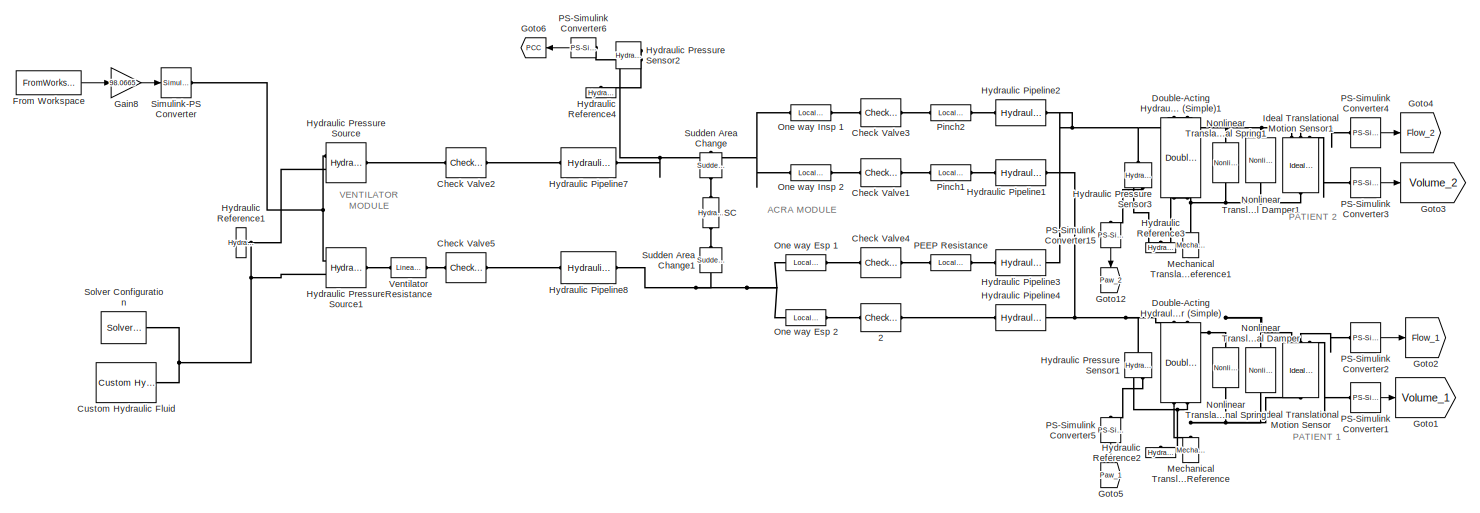
[diagram: root canvas - part 1/2, most of the canvas]
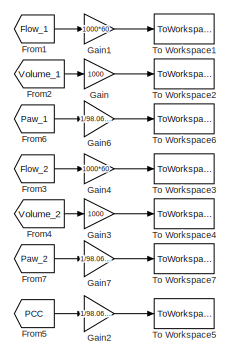
[diagram: root canvas - part 2/2, middle right region]
MODEL slx_180224f7515c
KIND model
CONFIG AbsTol = 1e-3
CONFIG EnableMultiTasking = on
CONFIG FixedStep = step
CONFIG MaxStep = auto
CONFIG MinStep = auto
CONFIG RelTol = 1e-3
CONFIG SampleTimeConstraint = Unconstrained
CONFIG Solver = VariableStepAuto
CONFIG SolverName = VariableStepAuto
CONFIG StartTime = 0.0
CONFIG StopTime = total_time
BLOCK [Reference]  2  REF=sh_lib/Valves/Directional Valves/Check Valve
  Ports = [0, 0, 0, 0, 0, 1, 1]
  SourceBlock = sh_lib/Valves/Directional Valves/Check Valve
  SourceProductBaseCode = SH
  SourceProductName = Simscape Fluids
  SourceType = Check Valve
BLOCK [Reference] Check Valve1  REF=sh_lib/Valves/Directional Valves/Check Valve
  Ports = [0, 0, 0, 0, 0, 1, 1]
  SourceBlock = sh_lib/Valves/Directional Valves/Check Valve
  SourceProductBaseCode = SH
  SourceProductName = Simscape Fluids
  SourceType = Check Valve
BLOCK [Reference] Check Valve2  REF=sh_lib/Valves/Directional Valves/Check Valve
  Ports = [0, 0, 0, 0, 0, 1, 1]
  SourceBlock = sh_lib/Valves/Directional Valves/Check Valve
  SourceProductBaseCode = SH
  SourceProductName = Simscape Fluids
  SourceType = Check Valve
BLOCK [Reference] Check Valve3  REF=sh_lib/Valves/Directional Valves/Check Valve
  Ports = [0, 0, 0, 0, 0, 1, 1]
  SourceBlock = sh_lib/Valves/Directional Valves/Check Valve
  SourceProductBaseCode = SH
  SourceProductName = Simscape Fluids
  SourceType = Check Valve
BLOCK [Reference] Check Valve4  REF=sh_lib/Valves/Directional Valves/Check Valve
  Ports = [0, 0, 0, 0, 0, 1, 1]
  SourceBlock = sh_lib/Valves/Directional Valves/Check Valve
  SourceProductBaseCode = SH
  SourceProductName = Simscape Fluids
  SourceType = Check Valve
BLOCK [Reference] Check Valve5  REF=sh_lib/Valves/Directional Valves/Check Valve
  Ports = [0, 0, 0, 0, 0, 1, 1]
  SourceBlock = sh_lib/Valves/Directional Valves/Check Valve
  SourceProductBaseCode = SH
  SourceProductName = Simscape Fluids
  SourceType = Check Valve
BLOCK [Reference] Custom Hydraulic Fluid  REF=fl_lib/Hydraulic/Hydraulic Utilities/Custom Hydraulic
Fluid
  Ports = [0, 0, 0, 0, 0, 0, 1]
  SourceBlock = fl_lib/Hydraulic/Hydraulic Utilities/Custom Hydraulic\nFluid
  SourceProductName = Foundation Library
  SourceType = Custom Hydraulic\nFluid
BLOCK [Reference] Double-Acting Hydraulic Cylinder (Simple)  REF=sh_lib/Hydraulic Cylinders/Double-Acting
Hydraulic Cylinder
(Simple)
  Ports = [0, 0, 0, 0, 0, 2, 2]
  SourceBlock = sh_lib/Hydraulic Cylinders/Double-Acting\nHydraulic Cylinder\n(Simple)
  SourceProductBaseCode = SH
  SourceProductName = Simscape Fluids
  SourceType = Double-Acting\nHydraulic Cylinder\n(Simple)
BLOCK [Reference] Double-Acting Hydraulic Cylinder (Simple)1  REF=sh_lib/Hydraulic Cylinders/Double-Acting
Hydraulic Cylinder
(Simple)
  Ports = [0, 0, 0, 0, 0, 2, 2]
  SourceBlock = sh_lib/Hydraulic Cylinders/Double-Acting\nHydraulic Cylinder\n(Simple)
  SourceProductBaseCode = SH
  SourceProductName = Simscape Fluids
  SourceType = Double-Acting\nHydraulic Cylinder\n(Simple)
BLOCK [FromWorkspace] From Workspace
  OutDataTypeStr = double
  SampleTime = 0
  VariableName = Input
  ZeroCross = on
BLOCK [From] From1
  GotoTag = Flow_1
BLOCK [From] From2
  GotoTag = Volume_1
BLOCK [From] From3
  GotoTag = Flow_2
BLOCK [From] From4
  GotoTag = Volume_2
BLOCK [From] From5
  GotoTag = PCC
BLOCK [From] From6
  GotoTag = Paw_1
BLOCK [From] From7
  GotoTag = Paw_2
BLOCK [Gain] Gain
  Gain = 1000
  OutDataTypeStr = Inherit: Inherit via internal rule
  ParamDataTypeStr = Inherit: Inherit via internal rule
  SaturateOnIntegerOverflow = off
BLOCK [Gain] Gain1
  Gain = 1000*60
  OutDataTypeStr = Inherit: Inherit via internal rule
  ParamDataTypeStr = Inherit: Inherit via internal rule
  SaturateOnIntegerOverflow = off
BLOCK [Gain] Gain2
  Gain = 1/98.0665
  OutDataTypeStr = Inherit: Inherit via internal rule
  ParamDataTypeStr = Inherit: Inherit via internal rule
  SaturateOnIntegerOverflow = off
BLOCK [Gain] Gain3
  Gain = 1000
  OutDataTypeStr = Inherit: Inherit via internal rule
  ParamDataTypeStr = Inherit: Inherit via internal rule
  SaturateOnIntegerOverflow = off
BLOCK [Gain] Gain4
  Gain = 1000*60
  OutDataTypeStr = Inherit: Inherit via internal rule
  ParamDataTypeStr = Inherit: Inherit via internal rule
  SaturateOnIntegerOverflow = off
BLOCK [Gain] Gain6
  Gain = 1/98.0665
  OutDataTypeStr = Inherit: Inherit via internal rule
  ParamDataTypeStr = Inherit: Inherit via internal rule
  SaturateOnIntegerOverflow = off
BLOCK [Gain] Gain7
  Gain = 1/98.0665
  OutDataTypeStr = Inherit: Inherit via internal rule
  ParamDataTypeStr = Inherit: Inherit via internal rule
  SaturateOnIntegerOverflow = off
BLOCK [Gain] Gain8
  Gain = 98.0665
  OutDataTypeStr = Inherit: Inherit via internal rule
  ParamDataTypeStr = Inherit: Inherit via internal rule
  SaturateOnIntegerOverflow = off
BLOCK [Goto] Goto1
  GotoTag = Volume_1
BLOCK [Goto] Goto12
  GotoTag = Paw_2
BLOCK [Goto] Goto2
  GotoTag = Flow_1
BLOCK [Goto] Goto3
  GotoTag = Volume_2
BLOCK [Goto] Goto4
  GotoTag = Flow_2
BLOCK [Goto] Goto5
  GotoTag = Paw_1
BLOCK [Goto] Goto6
  GotoTag = PCC
BLOCK [Reference] Hydraulic Pipeline1  REF=sh_lib/Pipelines/Hydraulic Pipeline
  Ports = [0, 0, 0, 0, 0, 1, 1]
  SourceBlock = sh_lib/Pipelines/Hydraulic Pipeline
  SourceProductBaseCode = SH
  SourceProductName = Simscape Fluids
  SourceType = Hydraulic Pipeline
BLOCK [Reference] Hydraulic Pipeline2  REF=sh_lib/Pipelines/Hydraulic Pipeline
  Ports = [0, 0, 0, 0, 0, 1, 1]
  SourceBlock = sh_lib/Pipelines/Hydraulic Pipeline
  SourceProductBaseCode = SH
  SourceProductName = Simscape Fluids
  SourceType = Hydraulic Pipeline
BLOCK [Reference] Hydraulic Pipeline3  REF=sh_lib/Pipelines/Hydraulic Pipeline
  Ports = [0, 0, 0, 0, 0, 1, 1]
  SourceBlock = sh_lib/Pipelines/Hydraulic Pipeline
  SourceProductBaseCode = SH
  SourceProductName = Simscape Fluids
  SourceType = Hydraulic Pipeline
BLOCK [Reference] Hydraulic Pipeline4  REF=sh_lib/Pipelines/Hydraulic Pipeline
  Ports = [0, 0, 0, 0, 0, 1, 1]
  SourceBlock = sh_lib/Pipelines/Hydraulic Pipeline
  SourceProductBaseCode = SH
  SourceProductName = Simscape Fluids
  SourceType = Hydraulic Pipeline
BLOCK [Reference] Hydraulic Pipeline7  REF=sh_lib/Pipelines/Hydraulic Pipeline
  Ports = [0, 0, 0, 0, 0, 1, 1]
  SourceBlock = sh_lib/Pipelines/Hydraulic Pipeline
  SourceProductBaseCode = SH
  SourceProductName = Simscape Fluids
  SourceType = Hydraulic Pipeline
BLOCK [Reference] Hydraulic Pipeline8  REF=sh_lib/Pipelines/Hydraulic Pipeline
  Ports = [0, 0, 0, 0, 0, 1, 1]
  SourceBlock = sh_lib/Pipelines/Hydraulic Pipeline
  SourceProductBaseCode = SH
  SourceProductName = Simscape Fluids
  SourceType = Hydraulic Pipeline
BLOCK [Reference] Hydraulic Pressure Sensor1  REF=fl_lib/Hydraulic/Hydraulic Sensors/Hydraulic Pressure
Sensor
  Ports = [0, 0, 0, 0, 0, 1, 2]
  SourceBlock = fl_lib/Hydraulic/Hydraulic Sensors/Hydraulic Pressure\nSensor
  SourceProductBaseCode = SS
  SourceProductName = Simscape
  SourceType = Hydraulic Pressure\nSensor
BLOCK [Reference] Hydraulic Pressure Sensor2  REF=fl_lib/Hydraulic/Hydraulic Sensors/Hydraulic Pressure
Sensor
  Ports = [0, 0, 0, 0, 0, 1, 2]
  SourceBlock = fl_lib/Hydraulic/Hydraulic Sensors/Hydraulic Pressure\nSensor
  SourceProductBaseCode = SS
  SourceProductName = Simscape
  SourceType = Hydraulic Pressure\nSensor
BLOCK [Reference] Hydraulic Pressure Sensor3  REF=fl_lib/Hydraulic/Hydraulic Sensors/Hydraulic Pressure
Sensor
  Ports = [0, 0, 0, 0, 0, 1, 2]
  SourceBlock = fl_lib/Hydraulic/Hydraulic Sensors/Hydraulic Pressure\nSensor
  SourceProductBaseCode = SS
  SourceProductName = Simscape
  SourceType = Hydraulic Pressure\nSensor
BLOCK [Reference] Hydraulic Pressure Source  REF=fl_lib/Hydraulic/Hydraulic Sources/Hydraulic Pressure
Source
  Ports = [0, 0, 0, 0, 0, 1, 2]
  SourceBlock = fl_lib/Hydraulic/Hydraulic Sources/Hydraulic Pressure\nSource
  SourceProductBaseCode = SS
  SourceProductName = Simscape
  SourceType = Hydraulic Pressure\nSource
BLOCK [Reference] Hydraulic Pressure Source1  REF=fl_lib/Hydraulic/Hydraulic Sources/Hydraulic Pressure
Source
  Ports = [0, 0, 0, 0, 0, 1, 2]
  SourceBlock = fl_lib/Hydraulic/Hydraulic Sources/Hydraulic Pressure\nSource
  SourceProductBaseCode = SS
  SourceProductName = Simscape
  SourceType = Hydraulic Pressure\nSource
BLOCK [Reference] Hydraulic Reference1  REF=fl_lib/Hydraulic/Hydraulic Elements/Hydraulic Reference
  Ports = [0, 0, 0, 0, 0, 1]
  SourceBlock = fl_lib/Hydraulic/Hydraulic Elements/Hydraulic Reference
  SourceProductName = Foundation Library
  SourceType = Hydraulic Reference
BLOCK [Reference] Hydraulic Reference2  REF=fl_lib/Hydraulic/Hydraulic Elements/Hydraulic Reference
  Ports = [0, 0, 0, 0, 0, 1]
  SourceBlock = fl_lib/Hydraulic/Hydraulic Elements/Hydraulic Reference
  SourceProductName = Foundation Library
  SourceType = Hydraulic Reference
BLOCK [Reference] Hydraulic Reference3  REF=fl_lib/Hydraulic/Hydraulic Elements/Hydraulic Reference
  Ports = [0, 0, 0, 0, 0, 1]
  SourceBlock = fl_lib/Hydraulic/Hydraulic Elements/Hydraulic Reference
  SourceProductName = Foundation Library
  SourceType = Hydraulic Reference
BLOCK [Reference] Hydraulic Reference4  REF=fl_lib/Hydraulic/Hydraulic Elements/Hydraulic Reference
  Ports = [0, 0, 0, 0, 0, 1]
  SourceBlock = fl_lib/Hydraulic/Hydraulic Elements/Hydraulic Reference
  SourceProductName = Foundation Library
  SourceType = Hydraulic Reference
BLOCK [Reference] Ideal Translational Motion Sensor  REF=fl_lib/Mechanical/Mechanical Sensors/Ideal Translational
Motion Sensor
  Ports = [0, 0, 0, 0, 0, 1, 3]
  SourceBlock = fl_lib/Mechanical/Mechanical Sensors/Ideal Translational\nMotion Sensor
  SourceProductBaseCode = SS
  SourceProductName = Simscape
  SourceType = Ideal Translational\nMotion Sensor
BLOCK [Reference] Ideal Translational Motion Sensor1  REF=fl_lib/Mechanical/Mechanical Sensors/Ideal Translational
Motion Sensor
  Ports = [0, 0, 0, 0, 0, 1, 3]
  SourceBlock = fl_lib/Mechanical/Mechanical Sensors/Ideal Translational\nMotion Sensor
  SourceProductBaseCode = SS
  SourceProductName = Simscape
  SourceType = Ideal Translational\nMotion Sensor
BLOCK [Reference] Mechanical Translational Reference  REF=fl_lib/Mechanical/Translational
Elements/Mechanical
Translational
Reference
  Ports = [0, 0, 0, 0, 0, 1]
  SourceBlock = fl_lib/Mechanical/Translational\nElements/Mechanical\nTranslational\nReference
  SourceProductBaseCode = SS
  SourceProductName = Simscape
  SourceType = Mechanical\nTranslational\nReference
BLOCK [Reference] Mechanical Translational Reference1  REF=fl_lib/Mechanical/Translational
Elements/Mechanical
Translational
Reference
  Ports = [0, 0, 0, 0, 0, 1]
  SourceBlock = fl_lib/Mechanical/Translational\nElements/Mechanical\nTranslational\nReference
  SourceProductBaseCode = SS
  SourceProductName = Simscape
  SourceType = Mechanical\nTranslational\nReference
BLOCK [Reference] Nonlinear Translational Damper  REF=sdl_lib/Couplings & Drives/Springs & Dampers/Nonlinear
Translational Damper
  Ports = [0, 0, 0, 0, 0, 1, 1]
  SourceBlock = sdl_lib/Couplings & Drives/Springs & Dampers/Nonlinear\nTranslational Damper
  SourceProductBaseCode = LD
  SourceProductName = Simscape Driveline
  SourceType = Nonlinear\nTranslational Damper
BLOCK [Reference] Nonlinear Translational Damper1  REF=sdl_lib/Couplings & Drives/Springs & Dampers/Nonlinear
Translational Damper
  Ports = [0, 0, 0, 0, 0, 1, 1]
  SourceBlock = sdl_lib/Couplings & Drives/Springs & Dampers/Nonlinear\nTranslational Damper
  SourceProductBaseCode = LD
  SourceProductName = Simscape Driveline
  SourceType = Nonlinear\nTranslational Damper
BLOCK [Reference] Nonlinear Translational Spring  REF=sdl_lib/Couplings & Drives/Springs & Dampers/Nonlinear
Translational Spring
  Ports = [0, 0, 0, 0, 0, 1, 1]
  SourceBlock = sdl_lib/Couplings & Drives/Springs & Dampers/Nonlinear\nTranslational Spring
  SourceProductBaseCode = LD
  SourceProductName = Simscape Driveline
  SourceType = Nonlinear\nTranslational Spring
BLOCK [Reference] Nonlinear Translational Spring1  REF=sdl_lib/Couplings & Drives/Springs & Dampers/Nonlinear
Translational Spring
  Ports = [0, 0, 0, 0, 0, 1, 1]
  SourceBlock = sdl_lib/Couplings & Drives/Springs & Dampers/Nonlinear\nTranslational Spring
  SourceProductBaseCode = LD
  SourceProductName = Simscape Driveline
  SourceType = Nonlinear\nTranslational Spring
BLOCK [Reference] One way Esp 1  REF=sh_lib/Local Hydraulic
Resistances/Local Resistance
  Ports = [0, 0, 0, 0, 0, 1, 1]
  SourceBlock = sh_lib/Local Hydraulic\nResistances/Local Resistance
  SourceProductBaseCode = SH
  SourceProductName = Simscape Fluids
  SourceType = Local Resistance
BLOCK [Reference] One way Esp 2  REF=sh_lib/Local Hydraulic
Resistances/Local Resistance
  Ports = [0, 0, 0, 0, 0, 1, 1]
  SourceBlock = sh_lib/Local Hydraulic\nResistances/Local Resistance
  SourceProductBaseCode = SH
  SourceProductName = Simscape Fluids
  SourceType = Local Resistance
BLOCK [Reference] One way Insp 1  REF=sh_lib/Local Hydraulic
Resistances/Local Resistance
  Ports = [0, 0, 0, 0, 0, 1, 1]
  SourceBlock = sh_lib/Local Hydraulic\nResistances/Local Resistance
  SourceProductBaseCode = SH
  SourceProductName = Simscape Fluids
  SourceType = Local Resistance
BLOCK [Reference] One way Insp 2  REF=sh_lib/Local Hydraulic
Resistances/Local Resistance
  Ports = [0, 0, 0, 0, 0, 1, 1]
  SourceBlock = sh_lib/Local Hydraulic\nResistances/Local Resistance
  SourceProductBaseCode = SH
  SourceProductName = Simscape Fluids
  SourceType = Local Resistance
BLOCK [Reference] PEEP Resistance  REF=sh_lib/Local Hydraulic
Resistances/Local Resistance
  Ports = [0, 0, 0, 0, 0, 1, 1]
  SourceBlock = sh_lib/Local Hydraulic\nResistances/Local Resistance
  SourceProductBaseCode = SH
  SourceProductName = Simscape Fluids
  SourceType = Local Resistance
BLOCK [Reference] PS-Simulink Converter1  REF=nesl_utility/PS-Simulink
Converter
  Ports = [0, 1, 0, 0, 0, 1]
  SourceBlock = nesl_utility/PS-Simulink\nConverter
  SourceProductBaseCode = SS
  SourceProductName = Simscape
  SourceType = PS-Simulink\nConverter
BLOCK [Reference] PS-Simulink Converter15  REF=nesl_utility/PS-Simulink
Converter
  Ports = [0, 1, 0, 0, 0, 1]
  SourceBlock = nesl_utility/PS-Simulink\nConverter
  SourceProductBaseCode = SS
  SourceProductName = Simscape
  SourceType = PS-Simulink\nConverter
BLOCK [Reference] PS-Simulink Converter2  REF=nesl_utility/PS-Simulink
Converter
  Ports = [0, 1, 0, 0, 0, 1]
  SourceBlock = nesl_utility/PS-Simulink\nConverter
  SourceProductBaseCode = SS
  SourceProductName = Simscape
  SourceType = PS-Simulink\nConverter
BLOCK [Reference] PS-Simulink Converter3  REF=nesl_utility/PS-Simulink
Converter
  Ports = [0, 1, 0, 0, 0, 1]
  SourceBlock = nesl_utility/PS-Simulink\nConverter
  SourceProductBaseCode = SS
  SourceProductName = Simscape
  SourceType = PS-Simulink\nConverter
BLOCK [Reference] PS-Simulink Converter4  REF=nesl_utility/PS-Simulink
Converter
  Ports = [0, 1, 0, 0, 0, 1]
  SourceBlock = nesl_utility/PS-Simulink\nConverter
  SourceProductBaseCode = SS
  SourceProductName = Simscape
  SourceType = PS-Simulink\nConverter
BLOCK [Reference] PS-Simulink Converter5  REF=nesl_utility/PS-Simulink
Converter
  Ports = [0, 1, 0, 0, 0, 1]
  SourceBlock = nesl_utility/PS-Simulink\nConverter
  SourceProductBaseCode = SS
  SourceProductName = Simscape
  SourceType = PS-Simulink\nConverter
BLOCK [Reference] PS-Simulink Converter6  REF=nesl_utility/PS-Simulink
Converter
  Ports = [0, 1, 0, 0, 0, 1]
  SourceBlock = nesl_utility/PS-Simulink\nConverter
  SourceProductBaseCode = SS
  SourceProductName = Simscape
  SourceType = PS-Simulink\nConverter
BLOCK [Reference] Pinch1  REF=sh_lib/Local Hydraulic
Resistances/Local Resistance
  Ports = [0, 0, 0, 0, 0, 1, 1]
  SourceBlock = sh_lib/Local Hydraulic\nResistances/Local Resistance
  SourceProductBaseCode = SH
  SourceProductName = Simscape Fluids
  SourceType = Local Resistance
BLOCK [Reference] Pinch2  REF=sh_lib/Local Hydraulic
Resistances/Local Resistance
  Ports = [0, 0, 0, 0, 0, 1, 1]
  SourceBlock = sh_lib/Local Hydraulic\nResistances/Local Resistance
  SourceProductBaseCode = SH
  SourceProductName = Simscape Fluids
  SourceType = Local Resistance
BLOCK [Reference] SC  REF=fl_lib/Hydraulic/Hydraulic Elements/Hydraulic Resistive
Tube
  Ports = [0, 0, 0, 0, 0, 1, 1]
  SourceBlock = fl_lib/Hydraulic/Hydraulic Elements/Hydraulic Resistive\nTube
  SourceProductBaseCode = SS
  SourceProductName = Simscape
  SourceType = Hydraulic Resistive\nTube
BLOCK [Reference] Simulink-PS Converter  REF=nesl_utility/Simulink-PS
Converter
  Ports = [1, 0, 0, 0, 0, 0, 1]
  SourceBlock = nesl_utility/Simulink-PS\nConverter
  SourceProductBaseCode = SS
  SourceProductName = Simscape
  SourceType = Simulink-PS\nConverter
BLOCK [Reference] Solver Configuration  REF=nesl_utility/Solver
Configuration
  Ports = [0, 0, 0, 0, 0, 0, 1]
  SourceBlock = nesl_utility/Solver\nConfiguration
  SourceProductBaseCode = SS
  SourceProductName = Simscape
  SourceType = Solver\nConfiguration
BLOCK [Reference] Sudden Area Change  REF=sh_lib/Local Hydraulic
Resistances/Sudden Area Change
  Ports = [0, 0, 0, 0, 0, 1, 1]
  SourceBlock = sh_lib/Local Hydraulic\nResistances/Sudden Area Change
  SourceProductBaseCode = SH
  SourceProductName = Simscape Fluids
  SourceType = Sudden Area Change
BLOCK [Reference] Sudden Area Change1  REF=sh_lib/Local Hydraulic
Resistances/Sudden Area Change
  Ports = [0, 0, 0, 0, 0, 1, 1]
  SourceBlock = sh_lib/Local Hydraulic\nResistances/Sudden Area Change
  SourceProductBaseCode = SH
  SourceProductName = Simscape Fluids
  SourceType = Sudden Area Change
BLOCK [ToWorkspace] To Workspace1
  FixptAsFi = on
  MaxDataPoints = inf
  Ports = [1]
  SampleTime = 0.01
  Save2DSignal = 2-D array (concatenate along first dimension)
  VariableName = flow_1_num
BLOCK [ToWorkspace] To Workspace2
  FixptAsFi = on
  MaxDataPoints = inf
  Ports = [1]
  SampleTime = 0.01
  Save2DSignal = 2-D array (concatenate along first dimension)
  VariableName = vol_1_num
BLOCK [ToWorkspace] To Workspace3
  FixptAsFi = on
  MaxDataPoints = inf
  Ports = [1]
  SampleTime = 0.01
  Save2DSignal = 2-D array (concatenate along first dimension)
  VariableName = flow_2_num
BLOCK [ToWorkspace] To Workspace4
  FixptAsFi = on
  MaxDataPoints = inf
  Ports = [1]
  SampleTime = 0.01
  Save2DSignal = 2-D array (concatenate along first dimension)
  VariableName = vol_2_num
BLOCK [ToWorkspace] To Workspace5
  FixptAsFi = on
  MaxDataPoints = inf
  Ports = [1]
  SampleTime = 0.01
  Save2DSignal = 2-D array (concatenate along first dimension)
  VariableName = Pcc_num
BLOCK [ToWorkspace] To Workspace6
  FixptAsFi = on
  MaxDataPoints = inf
  Ports = [1]
  SampleTime = 0.01
  Save2DSignal = 2-D array (concatenate along first dimension)
  VariableName = Paw_1_num
BLOCK [ToWorkspace] To Workspace7
  FixptAsFi = on
  MaxDataPoints = inf
  Ports = [1]
  SampleTime = 0.01
  Save2DSignal = 2-D array (concatenate along first dimension)
  VariableName = Paw_2_num
BLOCK [Reference] Ventilator Resistance  REF=fl_lib/Hydraulic/Hydraulic Elements/Linear Hydraulic
Resistance
  Ports = [0, 0, 0, 0, 0, 1, 1]
  SourceBlock = fl_lib/Hydraulic/Hydraulic Elements/Linear Hydraulic\nResistance
  SourceProductBaseCode = SS
  SourceProductName = Simscape
  SourceType = Linear Hydraulic\nResistance
ANNOTATION (root): ACRA MODULE
ANNOTATION (root): PATIENT 1
ANNOTATION (root): PATIENT 2
ANNOTATION (root): VENTILATOR MODULE
LINE From Workspace:1 -> Gain8:1
LINE From1:1 -> Gain1:1
LINE From2:1 -> Gain:1
LINE From3:1 -> Gain4:1
LINE From4:1 -> Gain3:1
LINE From5:1 -> Gain2:1
LINE From6:1 -> Gain6:1
LINE From7:1 -> Gain7:1
LINE Gain1:1 -> To Workspace1:1
LINE Gain2:1 -> To Workspace5:1
LINE Gain3:1 -> To Workspace4:1
LINE Gain4:1 -> To Workspace3:1
LINE Gain6:1 -> To Workspace6:1
LINE Gain7:1 -> To Workspace7:1
LINE Gain8:1 -> Simulink-PS Converter:1
LINE Gain:1 -> To Workspace2:1
LINE PS-Simulink Converter15:1 -> Goto12:1
LINE PS-Simulink Converter1:1 -> Goto1:1
LINE PS-Simulink Converter2:1 -> Goto2:1
LINE PS-Simulink Converter3:1 -> Goto3:1
LINE PS-Simulink Converter4:1 -> Goto4:1
LINE PS-Simulink Converter5:1 -> Goto5:1
LINE PS-Simulink Converter6:1 -> Goto6:1
PLINE  2:LConn1 -- Hydraulic Pipeline4:RConn1
PLINE  2:RConn1 -- One way Esp 2:RConn1
PLINE Check Valve1:LConn1 -- One way Insp 2:RConn1
PLINE Check Valve1:RConn1 -- Pinch1:LConn1
PLINE Check Valve2:LConn1 -- Hydraulic Pressure Source:LConn1
PLINE Check Valve2:RConn1 -- Hydraulic Pipeline7:RConn1
PLINE Check Valve3:LConn1 -- One way Insp 1:RConn1
PLINE Check Valve3:RConn1 -- Pinch2:LConn1
PLINE Check Valve4:LConn1 -- PEEP Resistance:LConn1
PLINE Check Valve4:RConn1 -- One way Esp 1:RConn1
PLINE Check Valve5:LConn1 -- Hydraulic Pipeline8:LConn1
PLINE Check Valve5:RConn1 -- Ventilator Resistance:LConn1
PNET net1: Custom Hydraulic Fluid:RConn1 -- Hydraulic Pressure Source1:RConn2 -- Hydraulic Pressure Source:RConn2 -- Hydraulic Reference1:LConn1 -- Solver Configuration:RConn1
PNET net2: Double-Acting Hydraulic Cylinder (Simple)1:LConn1 -- Ideal Translational Motion Sensor1:RConn1 -- Nonlinear Translational Damper1:RConn1 -- Nonlinear Translational Spring1:RConn1
PNET net3: Double-Acting Hydraulic Cylinder (Simple)1:LConn2 -- Hydraulic Pipeline2:LConn1 -- Hydraulic Pipeline3:LConn1 -- Hydraulic Pressure Sensor3:LConn1
PNET net4: Double-Acting Hydraulic Cylinder (Simple)1:RConn1 -- Ideal Translational Motion Sensor1:LConn1 -- Mechanical Translational Reference1:LConn1 -- Nonlinear Translational Damper1:LConn1 -- Nonlinear Translational Spring1:LConn1
PNET net5: Double-Acting Hydraulic Cylinder (Simple)1:RConn2 -- Hydraulic Pressure Sensor3:RConn1 -- Hydraulic Reference3:LConn1
PNET net6: Double-Acting Hydraulic Cylinder (Simple):LConn1 -- Ideal Translational Motion Sensor:RConn1 -- Nonlinear Translational Damper:RConn1 -- Nonlinear Translational Spring:RConn1
PNET net7: Double-Acting Hydraulic Cylinder (Simple):LConn2 -- Hydraulic Pipeline1:LConn1 -- Hydraulic Pipeline4:LConn1 -- Hydraulic Pressure Sensor1:LConn1
PNET net8: Double-Acting Hydraulic Cylinder (Simple):RConn1 -- Ideal Translational Motion Sensor:LConn1 -- Mechanical Translational Reference:LConn1 -- Nonlinear Translational Damper:LConn1 -- Nonlinear Translational Spring:LConn1
PNET net9: Double-Acting Hydraulic Cylinder (Simple):RConn2 -- Hydraulic Pressure Sensor1:RConn1 -- Hydraulic Reference2:LConn1
PLINE Hydraulic Pipeline1:RConn1 -- Pinch1:RConn1
PLINE Hydraulic Pipeline2:RConn1 -- Pinch2:RConn1
PLINE Hydraulic Pipeline3:RConn1 -- PEEP Resistance:RConn1
PNET net10: Hydraulic Pipeline7:LConn1 -- Hydraulic Pressure Sensor2:LConn1 -- One way Insp 1:LConn1 -- One way Insp 2:LConn1 -- Sudden Area Change:LConn1
PNET net11: Hydraulic Pipeline8:RConn1 -- One way Esp 1:LConn1 -- One way Esp 2:LConn1 -- Sudden Area Change1:LConn1
PLINE Hydraulic Pressure Sensor1:RConn2 -- PS-Simulink Converter5:LConn1
PLINE Hydraulic Pressure Sensor2:RConn1 -- Hydraulic Reference4:LConn1
PLINE Hydraulic Pressure Sensor2:RConn2 -- PS-Simulink Converter6:LConn1
PLINE Hydraulic Pressure Sensor3:RConn2 -- PS-Simulink Converter15:LConn1
PLINE Hydraulic Pressure Source1:LConn1 -- Ventilator Resistance:RConn1
PNET net12: Hydraulic Pressure Source1:RConn1 -- Hydraulic Pressure Source:RConn1 -- Simulink-PS Converter:RConn1
PLINE Ideal Translational Motion Sensor1:RConn2 -- PS-Simulink Converter4:LConn1
PLINE Ideal Translational Motion Sensor1:RConn3 -- PS-Simulink Converter3:LConn1
PLINE Ideal Translational Motion Sensor:RConn2 -- PS-Simulink Converter2:LConn1
PLINE Ideal Translational Motion Sensor:RConn3 -- PS-Simulink Converter1:LConn1
PLINE SC:LConn1 -- Sudden Area Change:RConn1
PLINE SC:RConn1 -- Sudden Area Change1:RConn1
note: PNET lines group multi-terminal physical nets as a canonical sorted terminal list (undirected conserving connections); 2-terminal nets keep the pairwise PLINE form
